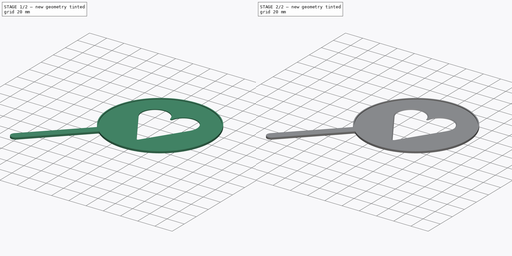
[diagram: build sequence overview — one tinted view per stage of 2, left to right]
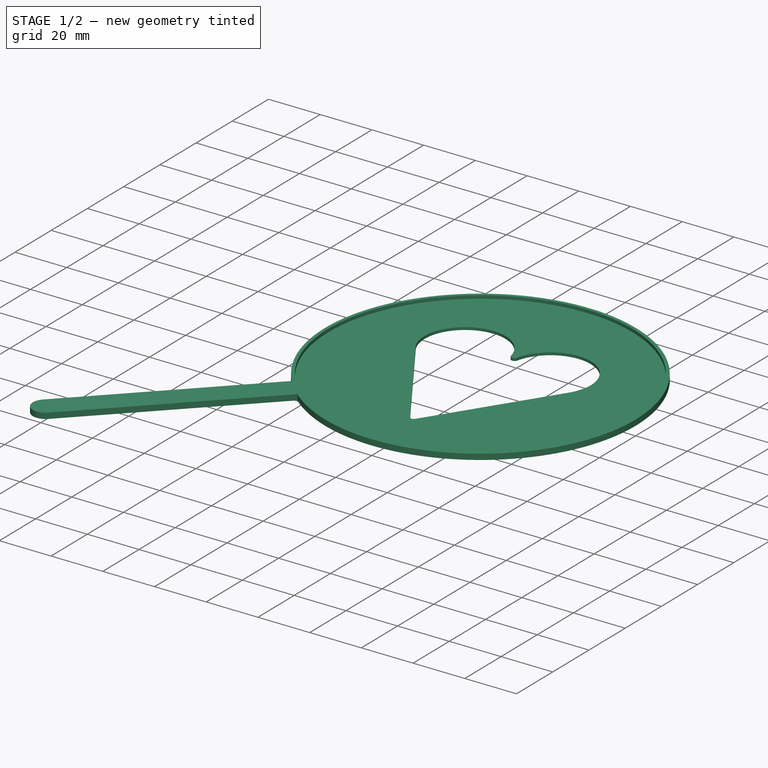
[diagram: stage 1 of 2 — iso view after this stage's code; geometry added in this stage tinted green]
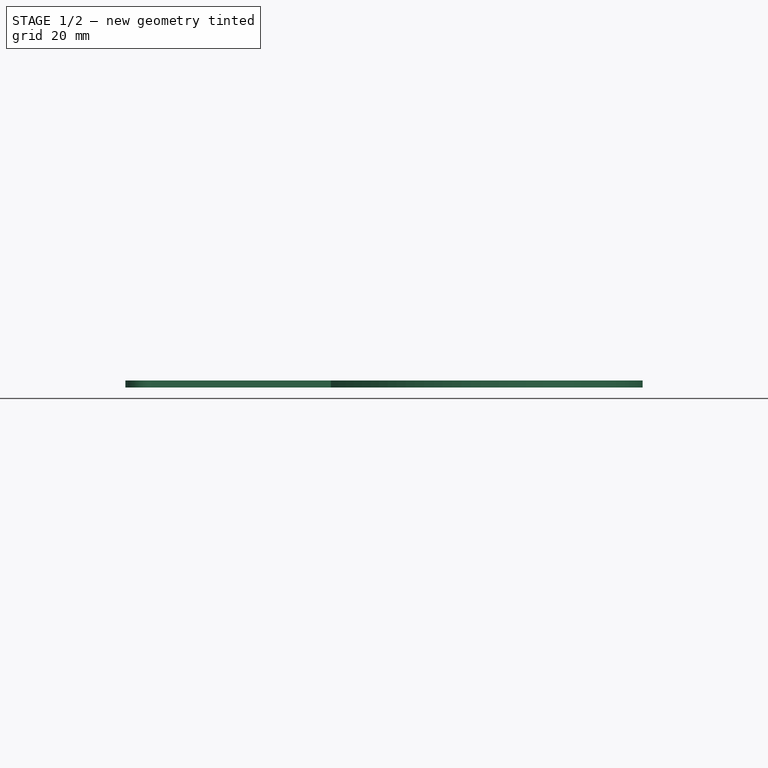
[diagram: stage 1 of 2 — front view after this stage's code; geometry added in this stage tinted green]
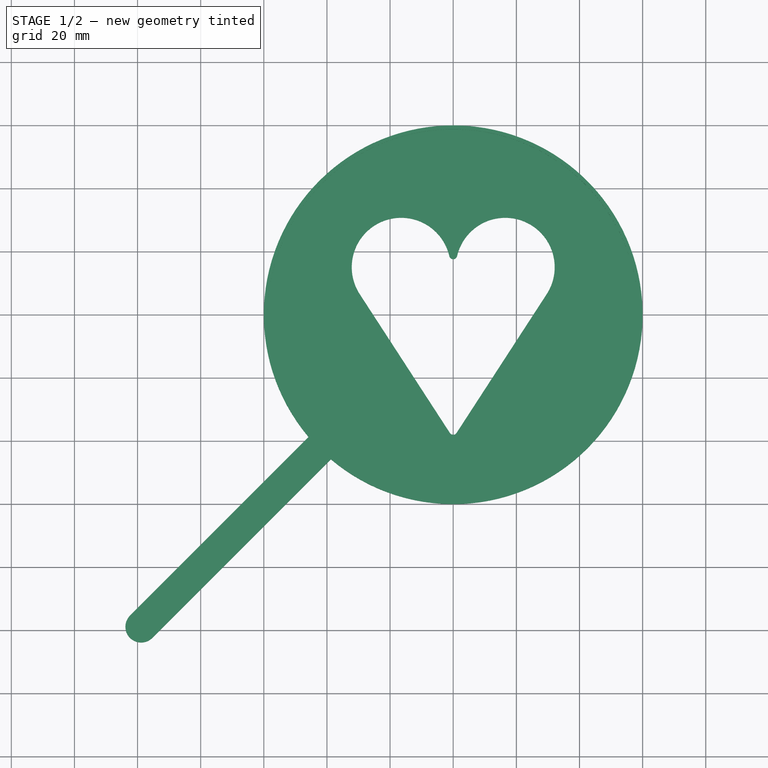
[diagram: stage 1 of 2 — top view after this stage's code; geometry added in this stage tinted green]
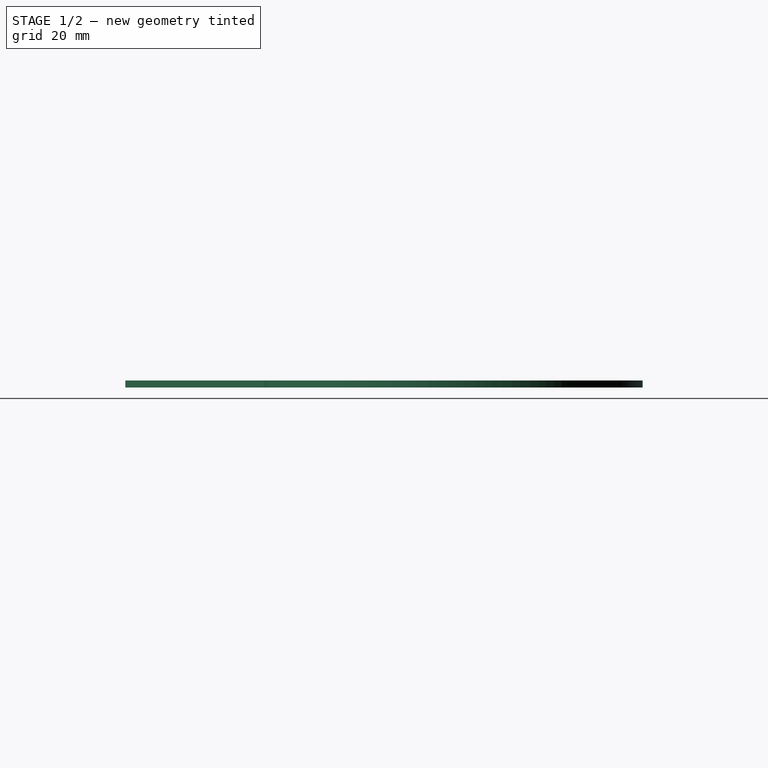
[diagram: stage 1 of 2 — right view after this stage's code; geometry added in this stage tinted green]
FCSTD DOCUMENT  (FreeCAD 0.17R13541 (Git))
Label: CoffeHeart
License: All rights reserved
LicenseURL: http://en.wikipedia.org/wiki/All_rights_reserved
objects: Sketcher::SketchObject×2, PartDesign::Pad×2, PartDesign::Chamfer×1, PartDesign::Body×1, App::Part×1
note: 8 computed .brp shape members not serialized (recipe doc carries the construction recipe); baked Part::Feature solids carry a one-line shape summary decoded from their .brp

FEATURE [Sketcher::SketchObject] Sketch  label="Base"
  MapMode = 5
  Support = -> [XY_Plane001]
  expr: Constraints.SmallR = Constraints.InnerRadius / 30
  sketch-geometry (16):
    g0: LineSegment StartX=-29.6196 StartY=6.55115 StartZ=0 EndX=-1.06232 EndY=-37.4232 EndZ=0
    g1: LineSegment StartX=1.06232 StartY=-37.4232 StartZ=0 EndX=29.6196 EndY=6.55115 EndZ=0
    g2: ArcOfCircle CenterX=-16.4892 CenterY=15.0782 CenterZ=0 NormalX=0 NormalY=0 NormalZ=1 AngleXU=0 Radius=15.6562 StartAngle=0.226893 EndAngle=3.71755
    g3: ArcOfCircle CenterX=16.4892 CenterY=15.0782 CenterZ=0 NormalX=0 NormalY=0 NormalZ=1 AngleXU=0 Radius=15.6562 StartAngle=5.70723 EndAngle=9.19789
    g4: LineSegment [constr] StartX=0 StartY=-38 StartZ=0 EndX=0 EndY=18.885 EndZ=0
    g5: LineSegment [constr] StartX=-29.6196 StartY=6.55115 StartZ=0 EndX=29.6196 EndY=6.55115 EndZ=0
    g6: Circle [constr] CenterX=0 CenterY=0 CenterZ=0 NormalX=0 NormalY=0 NormalZ=1 AngleXU=0 Radius=38
    g7: LineSegment [constr] StartX=-29.6196 StartY=6.55115 StartZ=0 EndX=-1.2342 EndY=18.6 EndZ=0
    g8: ArcOfCircle CenterX=0 CenterY=18.885 CenterZ=0 NormalX=0 NormalY=0 NormalZ=1 AngleXU=0 Radius=1.26667 StartAngle=3.36849 EndAngle=6.05629
    g9: ArcOfCircle CenterX=6e-12 CenterY=-36.7333 CenterZ=0 NormalX=0 NormalY=0 NormalZ=1 AngleXU=0 Radius=1.26667 StartAngle=3.71755 EndAngle=5.70723
    g10: ArcOfCircle CenterX=0 CenterY=0 CenterZ=0 NormalX=0 NormalY=0 NormalZ=1 AngleXU=0 Radius=60 StartAngle=4.01042 EndAngle=10.1267
    g11: LineSegment [constr] StartX=0 StartY=0 StartZ=0 EndX=-98.8474 EndY=-98.8474 EndZ=0
    g12: LineSegment StartX=-45.8144 StartY=-38.7433 StartZ=0 EndX=-102.383 EndY=-95.3118 EndZ=0
    g13: LineSegment [constr] StartX=-102.383 StartY=-95.3118 StartZ=0 EndX=-95.3118 EndY=-102.383 EndZ=0
    g14: LineSegment StartX=-95.3118 StartY=-102.383 StartZ=0 EndX=-38.7433 EndY=-45.8144 EndZ=0
    g15: ArcOfCircle CenterX=-98.8474 CenterY=-98.8474 CenterZ=0 NormalX=0 NormalY=0 NormalZ=1 AngleXU=0 Radius=5 StartAngle=2.35619 EndAngle=5.49779
  constraints (48):
    c: Symmetric(g0,g1,g-2)
    c: Coincident(g2,g0)
    c: Tangent(g0,g2) = -1.5708
    c: Coincident(g1,g3)
    c: Tangent(g1,g3) = -1.5708
    c: Equal(g2,g3)
    c: Coincident(g5,g0)
    c: PointOnObject(g5,g3)
    c: Horizontal(g5)
    c: Angle(g1,g0) = 1.15192
    c: PointOnObject(g6,g4)
    c: Coincident(g6,g-1)
    c: Tangent(g2,g6)
    c: Radius(g6) = 38  'InnerRadius'
    c: Coincident(g7,g0)
    c: Angle(g5,g7) = 0.401426
    c: Coincident(g8,g4)
    c: Coincident(g8,g3)
    c: Radius(g8) = 1.26667  'SmallR'
    c: Coincident(g8,g2)
    c: Tangent(g3,g8) = 1.5708
    c: Tangent(g2,g8) = 1.5708
    c: Coincident(g7,g2)
    c: Coincident(g9,g0)
    c: Coincident(g9,g1)
    c: Tangent(g0,g9) = -1.5708
    c: Tangent(g1,g9) = -1.5708
    c: Equal(g8,g9)
    c: PointOnObject(g4,g-2)
    c: PointOnObject(g4,g9)
    c: PointOnObject(g4,g6)
    c: Coincident(g10,g-1)
    c: Radius(g10) = 60  'OuterRadius'
    c: Coincident(g11,g-1)
    c: Angle(g11,g4) = 0.785398
    c: Coincident(g12,g10)
    c: Coincident(g13,g12)
    c: Coincident(g14,g13)
    c: Coincident(g14,g10)
    c: Parallel(g14,g11)
    c: Parallel(g11,g12)
    c: PointOnObject(g11,g13)
    c: Coincident(g15,g11)
    c: Coincident(g15,g12)
    c: Coincident(g15,g13)
    c: Distance(g14) = 80  'HandleLen'
    c: Distance(g10,g10) = 10  'HandleWidth'
    c: Equal(g14,g12)
FEATURE [PartDesign::Pad] Pad  label="Base_"
  Length = 1
  Length2 = 100
  Profile = -> Sketch
  Type = 0
FEATURE [Sketcher::SketchObject] Sketch001
  AttachmentOffset = pos=(0,0,1) rot=(0,0,1;0rad)
  MapMode = 5
  Placement = pos=(0,0,1) rot=(0,0,1;0rad)
  Support = -> [XY_Plane001]
  expr: Constraints[18] = Base.Constraints.OuterRadius - 1.22mm
  expr: Constraints[13] = Base.Constraints.HandleLen
  expr: Constraints[3] = Base.Constraints.OuterRadius
  expr: Constraints[8] = Base.Constraints.HandleWidth
  expr: AttachmentOffset.Base.z = Base_.Length
  sketch-geometry (7):
    g0: LineSegment [constr] StartX=0 StartY=0 StartZ=0 EndX=-98.8474 EndY=-98.8474 EndZ=0
    g1: ArcOfCircle CenterX=0 CenterY=0 CenterZ=0 NormalX=0 NormalY=0 NormalZ=1 AngleXU=0 Radius=60 StartAngle=4.01042 EndAngle=10.1267
    g2: LineSegment StartX=-45.8144 StartY=-38.7433 StartZ=0 EndX=-102.383 EndY=-95.3118 EndZ=0
    g3: LineSegment StartX=-38.7433 StartY=-45.8144 StartZ=0 EndX=-95.3118 EndY=-102.383 EndZ=0
    g4: ArcOfCircle CenterX=-98.8474 CenterY=-98.8474 CenterZ=0 NormalX=0 NormalY=0 NormalZ=1 AngleXU=0 Radius=5 StartAngle=2.35619 EndAngle=5.49779
    g5: LineSegment [constr] StartX=-102.383 StartY=-95.3118 StartZ=0 EndX=-95.3118 EndY=-102.383 EndZ=0
    g6: Circle CenterX=0 CenterY=0 CenterZ=0 NormalX=0 NormalY=0 NormalZ=1 AngleXU=0 Radius=58.78
  constraints (19):
    c: Coincident(g0,g-1)
    c: Angle(g0,g-1) = 2.35619
    c: Coincident(g1,g-1)
    c: Radius(g1) = 60
    c: Coincident(g2,g1)
    c: Coincident(g3,g1)
    c: Parallel(g3,g0)
    c: Parallel(g0,g2)
    c: Distance(g1,g1) = 10
    c: Equal(g3,g2)
    c: Coincident(g4,g0)
    c: Coincident(g4,g2)
    c: Coincident(g4,g3)
    c: Distance(g3) = 80
    c: Coincident(g5,g2)
    c: Coincident(g5,g3)
    c: PointOnObject(g0,g5)
    c: Coincident(g6,g-1)
    c: Radius(g6) = 58.78
FEATURE [PartDesign::Pad] Pad001
  BaseFeature = -> Pad
  Length = 1.2
  Length2 = 100
  Profile = -> Sketch001
  Refine = true
  Type = 0
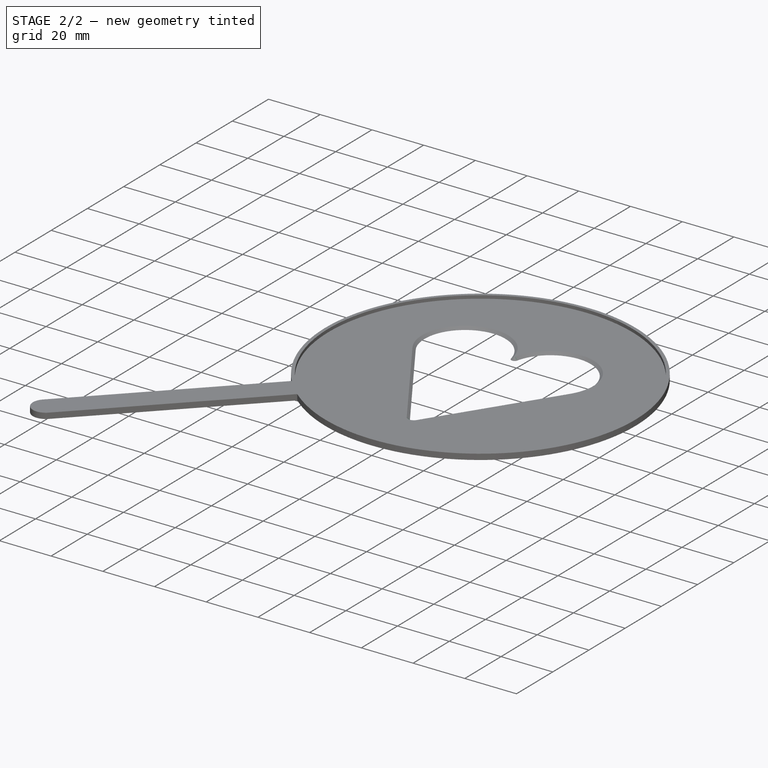
[diagram: stage 2 of 2 — iso view after this stage's code; geometry added in this stage tinted green]
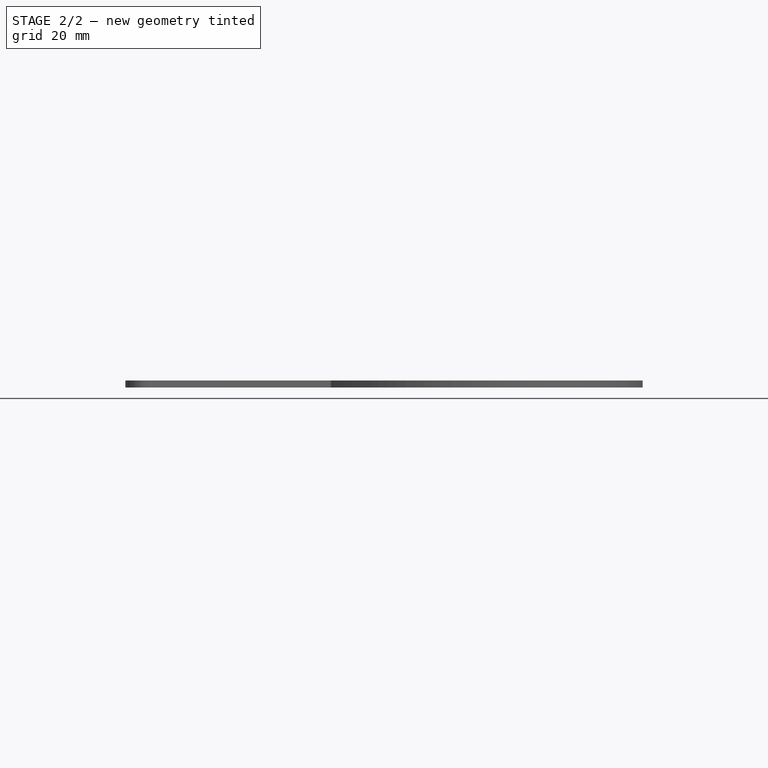
[diagram: stage 2 of 2 — front view after this stage's code; geometry added in this stage tinted green]
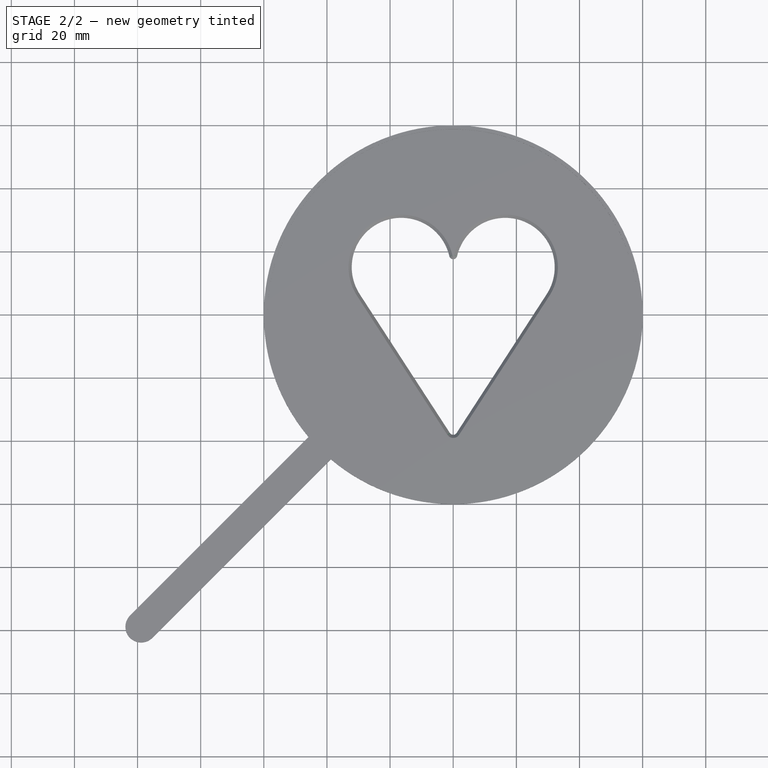
[diagram: stage 2 of 2 — top view after this stage's code; geometry added in this stage tinted green]
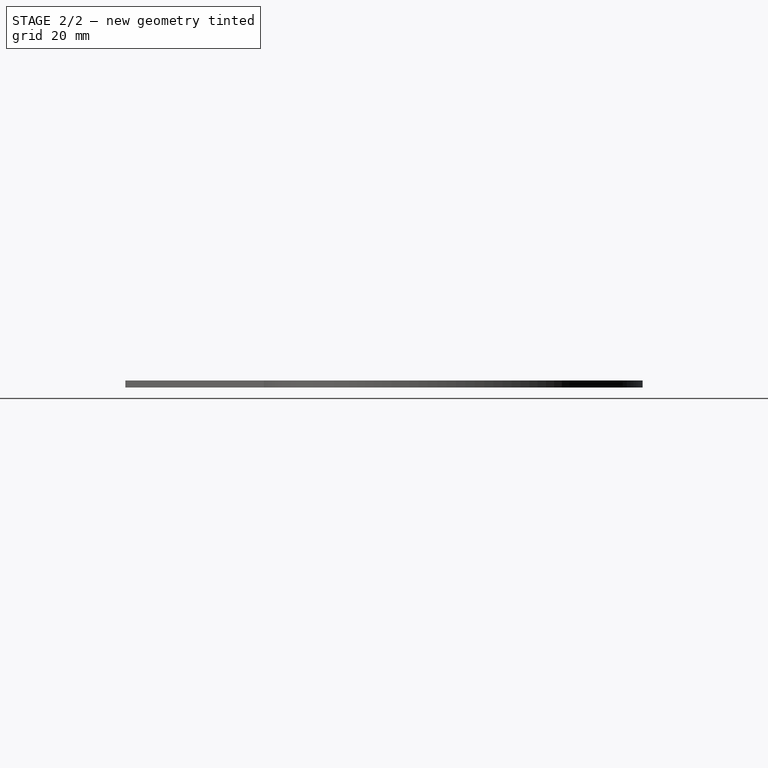
[diagram: stage 2 of 2 — right view after this stage's code; geometry added in this stage tinted green]
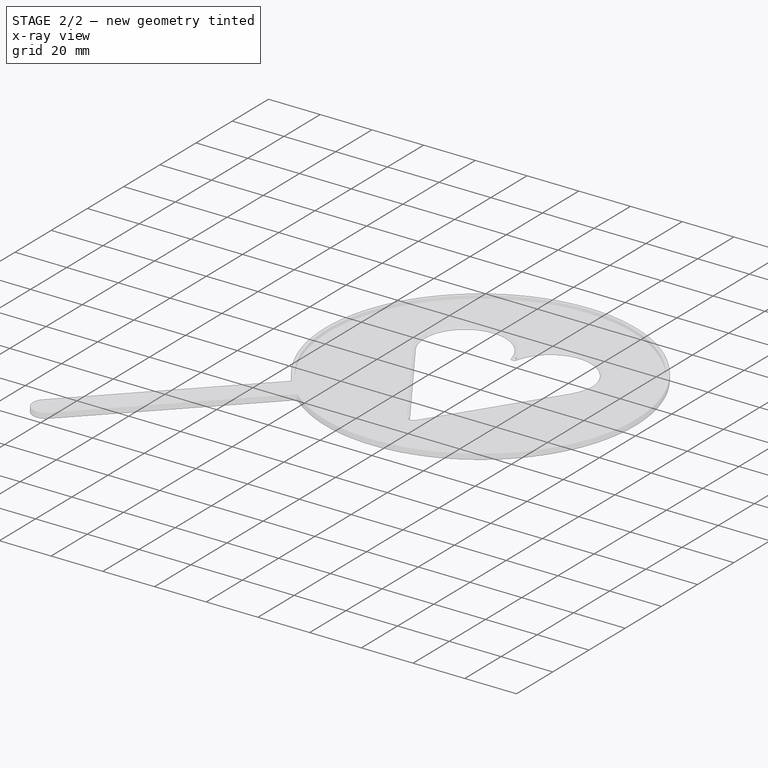
[diagram: stage 2 of 2 — x-ray composite at the iso view; earlier geometry ghosted, this stage's added geometry solid]
FEATURE [PartDesign::Chamfer] Chamfer
  Base = -> Pad001 [Edge22,Edge13,Edge15,Edge17,Edge19,Edge21]
  BaseFeature = -> Pad001
  Size = 0.999
  expr: Size = min(Base.Constraints.SmallR; Base_.Length) - 0.001mm
FEATURE [PartDesign::Body] Body
  Group = -> [Sketch,Pad,Sketch001,Pad001,Chamfer]
  Origin = -> Origin001
  Tip = -> Chamfer
FEATURE [App::Part] Part
  Group = -> [Body]
  License = CC BY 3.0
  LicenseURL = http://creativecommons.org/licenses/by/3.0/
  Origin = -> Origin
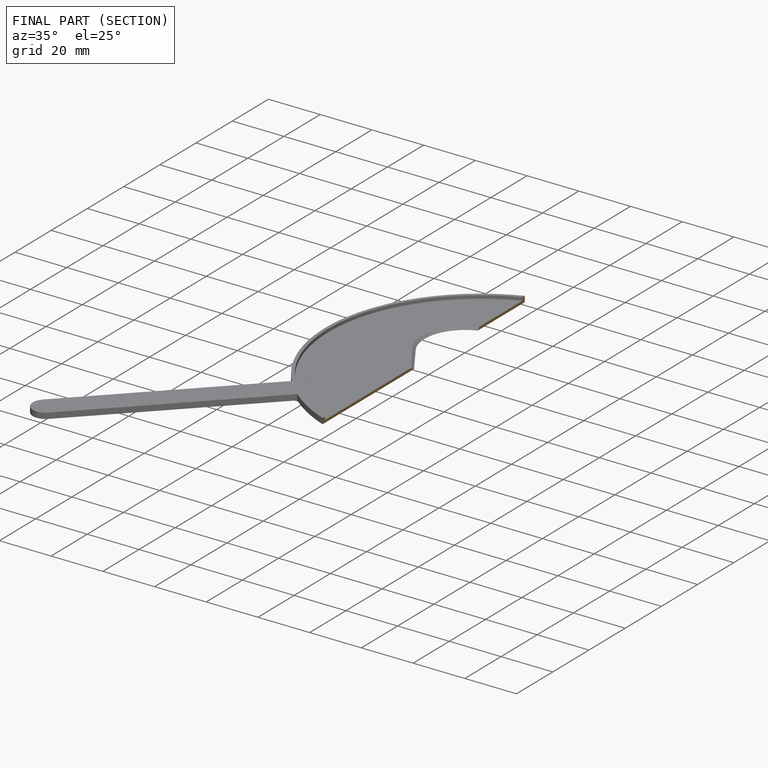
[diagram: finished part — half-section view (interior)]
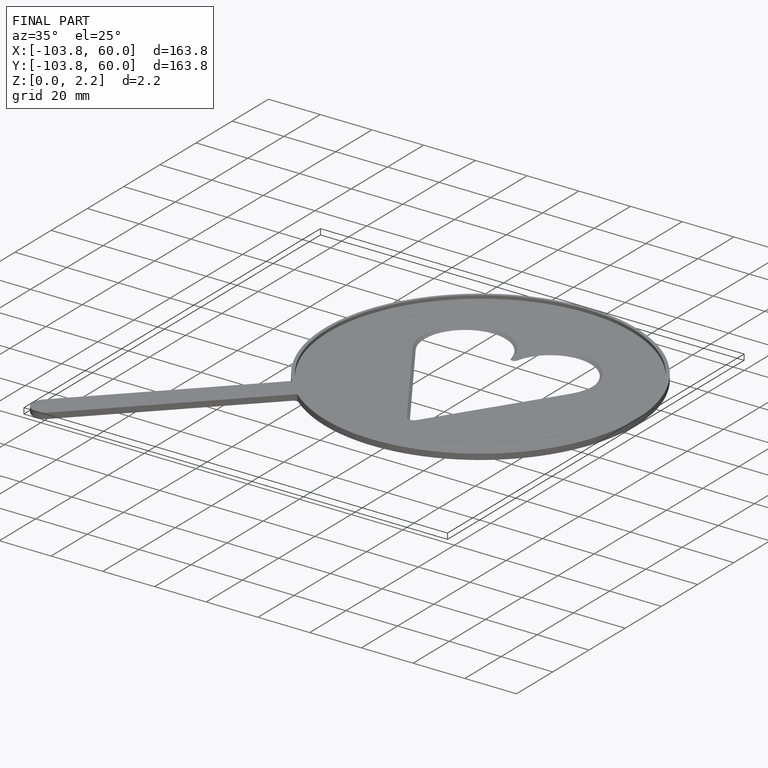
[diagram: finished part — iso view with bounding-box wireframe]
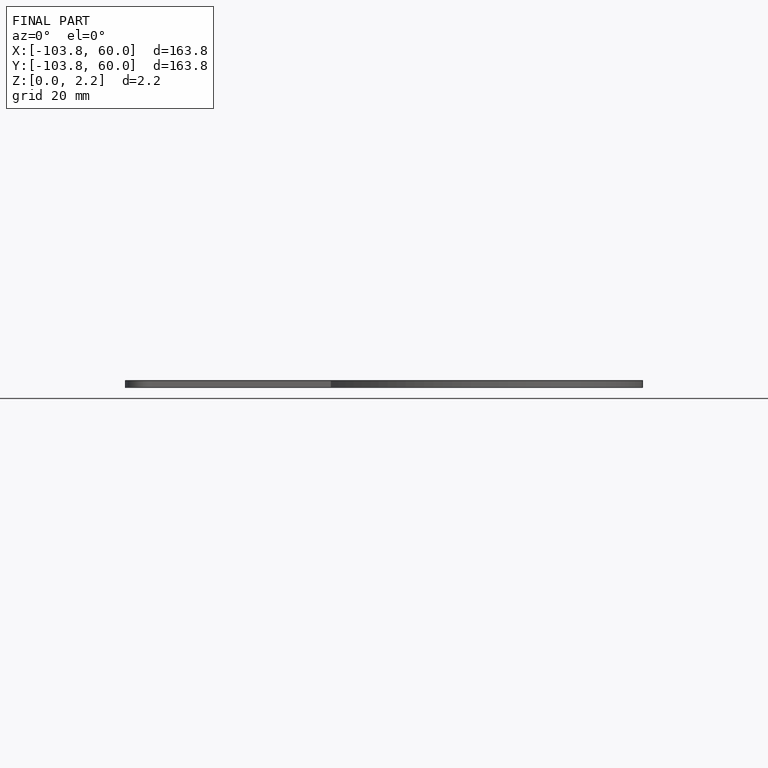
[diagram: finished part — front view with bounding-box wireframe]
